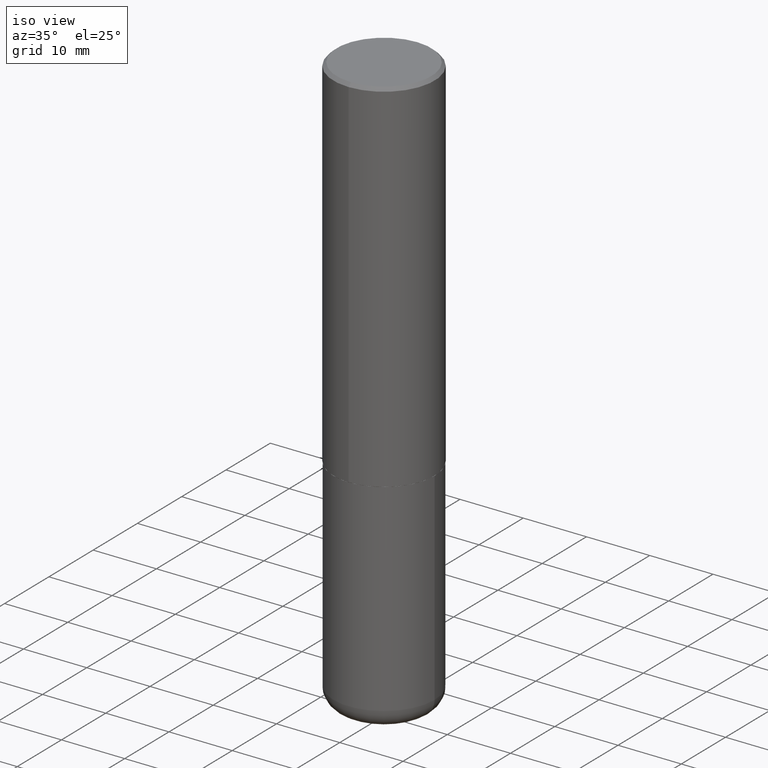
[diagram: clean part render]
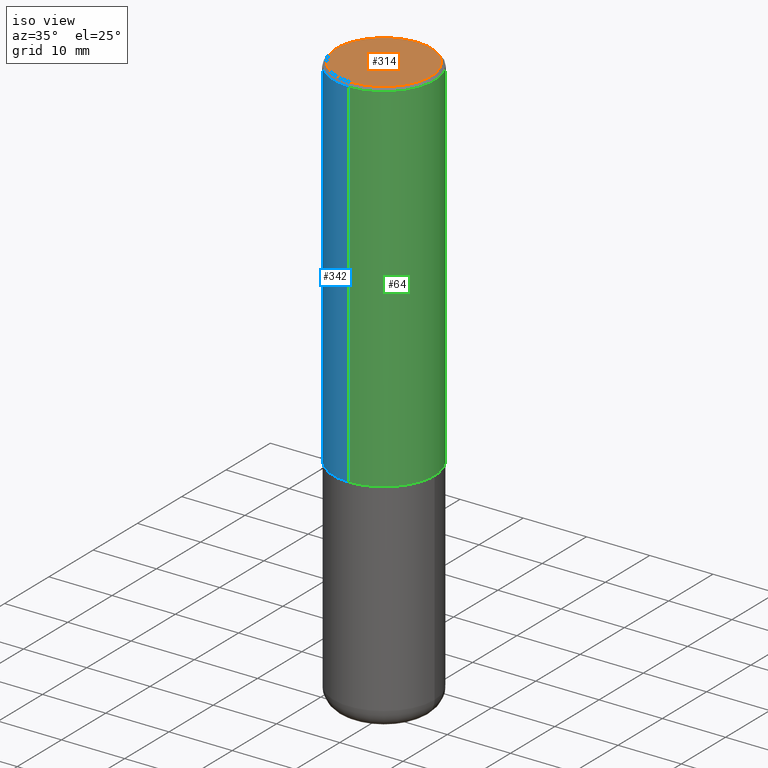
[diagram: same view with three faces highlighted in distinct colors, each labeled with its STEP entity id]
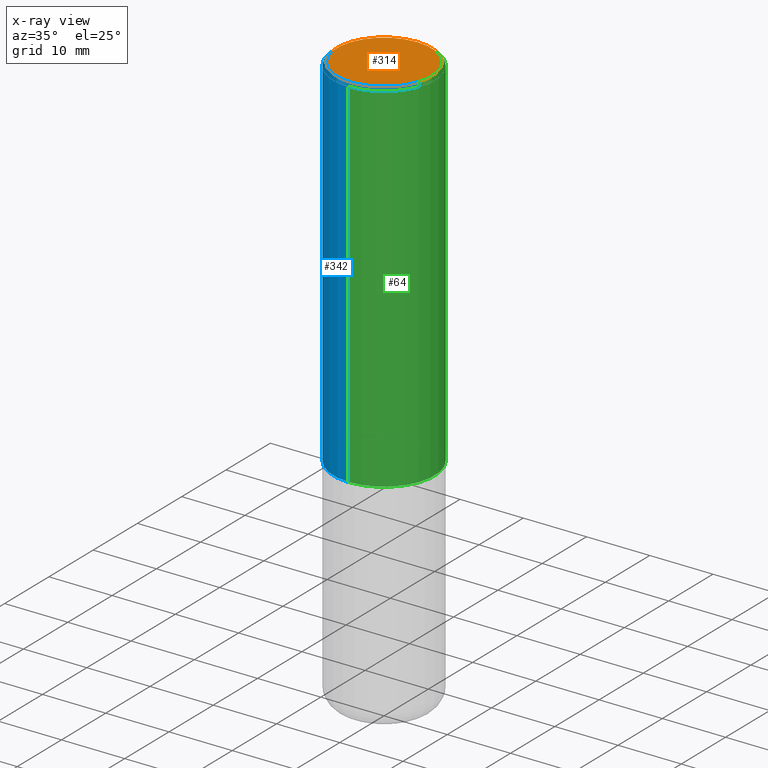
[diagram: x-ray of the same camera — body ghosted, the three highlighted faces saturated]
A machine part, iso view with three faces highlighted in distinct colors.
The next image is the same camera in x-ray (body ghosted, the three faces saturated) — at least one of them is partly hidden behind the body in this view.
Their STEP definitions:

[orange] entity #314 — the highlighted planar face has unit normal (0, -0, -1).
#2 = CARTESIAN_POINT ( 'NONE',  ( 2.059624841783564063E-15, 0.2949499999999999345, -9.678634946549864323E-16 ) ) ;
#32 = FACE_OUTER_BOUND ( 'NONE', #104, .T. ) ;
#38 = CIRCLE ( 'NONE', #399, 0.2949499999999999345 ) ;
#40 = DIRECTION ( 'NONE',  ( -2.445731576433639542E-29, 3.491105036891335583E-15, 1.000000000000000000 ) ) ;
#59 = DIRECTION ( 'NONE',  ( -6.982962677686267499E-15, -1.000000000000000000, 3.491105036891335189E-15 ) ) ;
#67 = ORIENTED_EDGE ( 'NONE', *, *, #393, .T. ) ;
#70 = ORIENTED_EDGE ( 'NONE', *, *, #240, .T. ) ;
#75 = DIRECTION ( 'NONE',  ( -6.982962677686267499E-15, -1.000000000000000000, 3.491105036891335189E-15 ) ) ;
#78 = DIRECTION ( 'NONE',  ( 6.982962677686265922E-15, 1.000000000000000000, -3.491105036891335583E-15 ) ) ;
#102 = AXIS2_PLACEMENT_3D ( 'NONE', #347, #124, #59 ) ;
#104 = EDGE_LOOP ( 'NONE', ( #70, #67 ) ) ;
#124 = DIRECTION ( 'NONE',  ( -2.445731576433639542E-29, 3.491105036891335583E-15, 1.000000000000000000 ) ) ;
#169 = CARTESIAN_POINT ( 'NONE',  ( -3.024779852765215528E-45, 4.317654595143425060E-31, 1.236758719522255372E-16 ) ) ;
#181 = VERTEX_POINT ( 'NONE', #411 ) ;
#225 = CIRCLE ( 'NONE', #102, 0.2949499999999999345 ) ;
#229 = VERTEX_POINT ( 'NONE', #248 ) ;
#240 = EDGE_CURVE ( 'NONE', #181, #229, #225, .T. ) ;
#248 = CARTESIAN_POINT ( 'NONE',  ( -2.092108864420428031E-15, -0.2949499999999999345, 1.153377302583324726E-15 ) ) ;
#286 = PLANE ( 'NONE',  #401 ) ;
#314 = ADVANCED_FACE ( 'NONE', ( #32 ), #286, .F. ) ;
#347 = CARTESIAN_POINT ( 'NONE',  ( -3.024779852765215528E-45, 4.317654595143425060E-31, 1.236758719522255372E-16 ) ) ;
#360 = DIRECTION ( 'NONE',  ( 2.445731576433639262E-29, -3.491105036891335583E-15, -1.000000000000000000 ) ) ;
#393 = EDGE_CURVE ( 'NONE', #229, #181, #38, .T. ) ;
#399 = AXIS2_PLACEMENT_3D ( 'NONE', #169, #40, #75 ) ;
#401 = AXIS2_PLACEMENT_3D ( 'NONE', #2, #360, #78 ) ;
#411 = CARTESIAN_POINT ( 'NONE',  ( 2.129454468560426967E-15, 0.2949499999999999345, -9.060255586788737993E-16 ) ) ;

[blue] entity #342 — the highlighted cylindrical surface (partial cylindrical patch) has radius 7.9997 mm, axis along (-0, 0, 1).
#3 = ORIENTED_EDGE ( 'NONE', *, *, #71, .F. ) ;
#31 = VERTEX_POINT ( 'NONE', #82 ) ;
#37 = DIRECTION ( 'NONE',  ( -2.445731576433639542E-29, 3.491105036891335583E-15, 1.000000000000000000 ) ) ;
#39 = VERTEX_POINT ( 'NONE', #209 ) ;
#48 = CARTESIAN_POINT ( 'NONE',  ( -2.199284095337290265E-15, -0.3149500000000001743, 1.099523531368926621E-15 ) ) ;
#51 = DIRECTION ( 'NONE',  ( -2.445731576433639542E-29, 3.491105036891335583E-15, 1.000000000000000000 ) ) ;
#57 = LINE ( 'NONE', #397, #140 ) ;
#71 = EDGE_CURVE ( 'NONE', #385, #39, #57, .T. ) ;
#76 = CARTESIAN_POINT ( 'NONE',  ( 4.891463152867296425E-31, -6.982210073782693945E-17, -0.02000000000000006981 ) ) ;
#80 = LINE ( 'NONE', #48, #120 ) ;
#82 = CARTESIAN_POINT ( 'NONE',  ( -2.160713844398143757E-15, -0.3149500000000001743, -0.01999999999999896652 ) ) ;
#92 = EDGE_CURVE ( 'NONE', #341, #31, #80, .T. ) ;
#98 = ORIENTED_EDGE ( 'NONE', *, *, #92, .T. ) ;
#112 = DIRECTION ( 'NONE',  ( -2.445731576433639542E-29, 3.491105036891335583E-15, 1.000000000000000000 ) ) ;
#120 = VECTOR ( 'NONE', #51, 39.37007874015748143 ) ;
#136 = ORIENTED_EDGE ( 'NONE', *, *, #333, .F. ) ;
#139 = CARTESIAN_POINT ( 'NONE',  ( 2.237854346276464384E-15, 0.3149499999999924027, -2.243000000000000771 ) ) ;
#140 = VECTOR ( 'NONE', #112, 39.37007874015748143 ) ;
#143 = ORIENTED_EDGE ( 'NONE', *, *, #348, .T. ) ;
#163 = CARTESIAN_POINT ( 'NONE',  ( -2.199284095337236228E-15, -0.3149500000000081124, -2.242999999999998550 ) ) ;
#170 = CYLINDRICAL_SURFACE ( 'NONE', #361, 0.3149500000000001743 ) ;
#184 = AXIS2_PLACEMENT_3D ( 'NONE', #76, #357, #200 ) ;
#200 = DIRECTION ( 'NONE',  ( -6.982962677686265922E-15, -1.000000000000000000, 3.496670018878888311E-15 ) ) ;
#203 = AXIS2_PLACEMENT_3D ( 'NONE', #294, #37, #259 ) ;
#209 = CARTESIAN_POINT ( 'NONE',  ( 2.199284095337290265E-15, 0.3149500000000000077, -0.02000000000000116962 ) ) ;
#218 = CIRCLE ( 'NONE', #203, 0.3149500000000002853 ) ;
#222 = EDGE_LOOP ( 'NONE', ( #3, #143, #98, #136 ) ) ;
#230 = DIRECTION ( 'NONE',  ( -6.982962677686264344E-15, -1.000000000000000000, 3.491105036891335189E-15 ) ) ;
#259 = DIRECTION ( 'NONE',  ( -6.982962677686265922E-15, -1.000000000000000000, 3.469564049740290009E-15 ) ) ;
#262 = DIRECTION ( 'NONE',  ( -2.445731576433639542E-29, 3.491105036891335583E-15, 1.000000000000000000 ) ) ;
#288 = CARTESIAN_POINT ( 'NONE',  ( 0.000000000000000000, 0.000000000000000000, 0.000000000000000000 ) ) ;
#294 = CARTESIAN_POINT ( 'NONE',  ( 5.485775925940652970E-29, -7.830548597747266147E-15, -2.242999999999999883 ) ) ;
#295 = CIRCLE ( 'NONE', #184, 0.3149500000000000632 ) ;
#333 = EDGE_CURVE ( 'NONE', #39, #31, #295, .T. ) ;
#341 = VERTEX_POINT ( 'NONE', #163 ) ;
#342 = ADVANCED_FACE ( 'NONE', ( #363 ), #170, .T. ) ;
#348 = EDGE_CURVE ( 'NONE', #385, #341, #218, .T. ) ;
#357 = DIRECTION ( 'NONE',  ( -2.445731576433639542E-29, 3.491105036891335583E-15, 1.000000000000000000 ) ) ;
#361 = AXIS2_PLACEMENT_3D ( 'NONE', #288, #262, #230 ) ;
#363 = FACE_OUTER_BOUND ( 'NONE', #222, .T. ) ;
#385 = VERTEX_POINT ( 'NONE', #139 ) ;
#397 = CARTESIAN_POINT ( 'NONE',  ( 2.237854346276435985E-15, 0.3149500000000001743, -1.099523531368926621E-15 ) ) ;

[green] entity #64 — the highlighted cylindrical surface (partial cylindrical patch) has radius 7.9997 mm, axis along (-0, 0, 1).
#23 = ORIENTED_EDGE ( 'NONE', *, *, #329, .F. ) ;
#31 = VERTEX_POINT ( 'NONE', #82 ) ;
#39 = VERTEX_POINT ( 'NONE', #209 ) ;
#48 = CARTESIAN_POINT ( 'NONE',  ( -2.199284095337290265E-15, -0.3149500000000001743, 1.099523531368926621E-15 ) ) ;
#51 = DIRECTION ( 'NONE',  ( -2.445731576433639542E-29, 3.491105036891335583E-15, 1.000000000000000000 ) ) ;
#57 = LINE ( 'NONE', #397, #140 ) ;
#64 = ADVANCED_FACE ( 'NONE', ( #277 ), #153, .T. ) ;
#71 = EDGE_CURVE ( 'NONE', #385, #39, #57, .T. ) ;
#80 = LINE ( 'NONE', #48, #120 ) ;
#82 = CARTESIAN_POINT ( 'NONE',  ( -2.160713844398143757E-15, -0.3149500000000001743, -0.01999999999999896652 ) ) ;
#84 = DIRECTION ( 'NONE',  ( -6.982962677686265922E-15, -1.000000000000000000, 3.469564049740290009E-15 ) ) ;
#92 = EDGE_CURVE ( 'NONE', #341, #31, #80, .T. ) ;
#93 = CIRCLE ( 'NONE', #352, 0.3149500000000002853 ) ;
#103 = EDGE_CURVE ( 'NONE', #341, #385, #93, .T. ) ;
#107 = DIRECTION ( 'NONE',  ( -2.445731576433639542E-29, 3.491105036891335583E-15, 1.000000000000000000 ) ) ;
#109 = CARTESIAN_POINT ( 'NONE',  ( 4.891463152867296425E-31, -6.982210073782693945E-17, -0.02000000000000006981 ) ) ;
#112 = DIRECTION ( 'NONE',  ( -2.445731576433639542E-29, 3.491105036891335583E-15, 1.000000000000000000 ) ) ;
#120 = VECTOR ( 'NONE', #51, 39.37007874015748143 ) ;
#138 = ORIENTED_EDGE ( 'NONE', *, *, #103, .T. ) ;
#139 = CARTESIAN_POINT ( 'NONE',  ( 2.237854346276464384E-15, 0.3149499999999924027, -2.243000000000000771 ) ) ;
#140 = VECTOR ( 'NONE', #112, 39.37007874015748143 ) ;
#152 = AXIS2_PLACEMENT_3D ( 'NONE', #109, #107, #388 ) ;
#153 = CYLINDRICAL_SURFACE ( 'NONE', #263, 0.3149500000000001743 ) ;
#163 = CARTESIAN_POINT ( 'NONE',  ( -2.199284095337236228E-15, -0.3149500000000081124, -2.242999999999998550 ) ) ;
#168 = CIRCLE ( 'NONE', #152, 0.3149500000000000632 ) ;
#189 = EDGE_LOOP ( 'NONE', ( #138, #364, #23, #247 ) ) ;
#208 = DIRECTION ( 'NONE',  ( -2.445731576433639542E-29, 3.491105036891335583E-15, 1.000000000000000000 ) ) ;
#209 = CARTESIAN_POINT ( 'NONE',  ( 2.199284095337290265E-15, 0.3149500000000000077, -0.02000000000000116962 ) ) ;
#242 = CARTESIAN_POINT ( 'NONE',  ( 5.485775925940652970E-29, -7.830548597747266147E-15, -2.242999999999999883 ) ) ;
#247 = ORIENTED_EDGE ( 'NONE', *, *, #92, .F. ) ;
#263 = AXIS2_PLACEMENT_3D ( 'NONE', #338, #208, #376 ) ;
#277 = FACE_OUTER_BOUND ( 'NONE', #189, .T. ) ;
#329 = EDGE_CURVE ( 'NONE', #31, #39, #168, .T. ) ;
#338 = CARTESIAN_POINT ( 'NONE',  ( 0.000000000000000000, 0.000000000000000000, 0.000000000000000000 ) ) ;
#341 = VERTEX_POINT ( 'NONE', #163 ) ;
#352 = AXIS2_PLACEMENT_3D ( 'NONE', #242, #373, #84 ) ;
#364 = ORIENTED_EDGE ( 'NONE', *, *, #71, .T. ) ;
#373 = DIRECTION ( 'NONE',  ( -2.445731576433639542E-29, 3.491105036891335583E-15, 1.000000000000000000 ) ) ;
#376 = DIRECTION ( 'NONE',  ( -6.982962677686264344E-15, -1.000000000000000000, 3.491105036891335189E-15 ) ) ;
#385 = VERTEX_POINT ( 'NONE', #139 ) ;
#388 = DIRECTION ( 'NONE',  ( -6.982962677686265922E-15, -1.000000000000000000, 3.496670018878888311E-15 ) ) ;
#397 = CARTESIAN_POINT ( 'NONE',  ( 2.237854346276435985E-15, 0.3149500000000001743, -1.099523531368926621E-15 ) ) ;